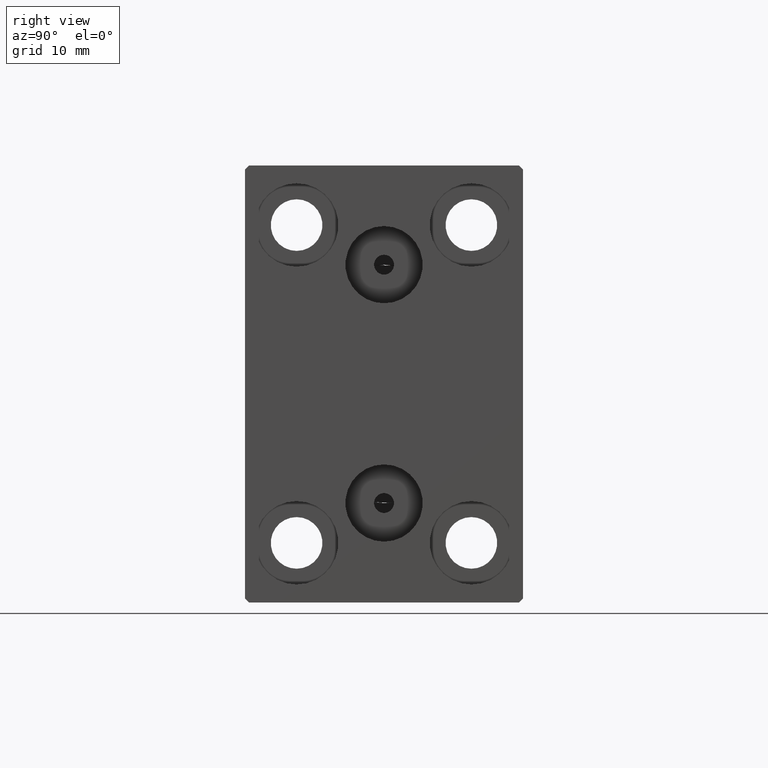
[diagram: clean part render]
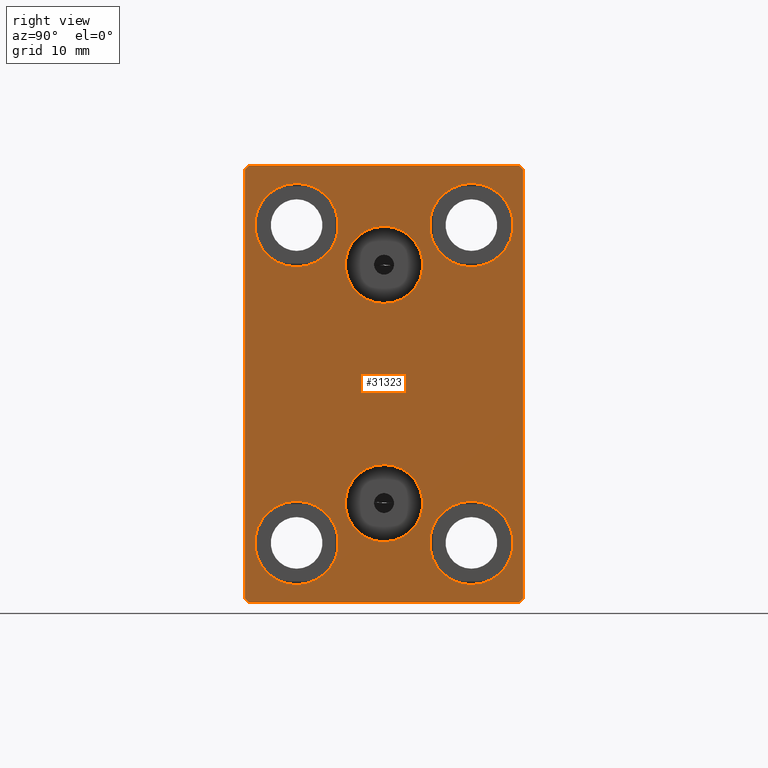
[diagram: same view with one face highlighted and labeled with its STEP entity id]
A machine part, right view. The second image highlights one B-rep face of the part: STEP entity #31323.
In plain terms, the highlighted planar face has unit normal (1, 0, 0).
Its self-contained STEP definition (entity closure, byte-faithful):
#24 = DIRECTION ( 'NONE',  ( -1.000000000000000000, -0.000000000000000000, -0.000000000000000000 ) ) ;
#706 = ORIENTED_EDGE ( 'NONE', *, *, #36427, .F. ) ;
#783 = VERTEX_POINT ( 'NONE', #35696 ) ;
#798 = ORIENTED_EDGE ( 'NONE', *, *, #19202, .T. ) ;
#1174 = VECTOR ( 'NONE', #10110, 1000.000000000000114 ) ;
#1561 = ORIENTED_EDGE ( 'NONE', *, *, #9342, .F. ) ;
#1874 = CARTESIAN_POINT ( 'NONE',  ( 56.00000000000000000, -16.99999999999999289, -27.50000000000000355 ) ) ;
#1967 = CARTESIAN_POINT ( 'NONE',  ( 56.00000000000000000, -11.00000000000000355, -25.25000000000000000 ) ) ;
#2121 = ORIENTED_EDGE ( 'NONE', *, *, #24792, .F. ) ;
#2409 = DIRECTION ( 'NONE',  ( -1.000000000000000000, -0.000000000000000000, -0.000000000000000000 ) ) ;
#2417 = CARTESIAN_POINT ( 'NONE',  ( 56.00000000000000000, -17.50000000000000000, 27.49999999999999645 ) ) ;
#2568 = EDGE_CURVE ( 'NONE', #41275, #17349, #3261, .T. ) ;
#2632 = EDGE_CURVE ( 'NONE', #6787, #36445, #24089, .T. ) ;
#2655 = ORIENTED_EDGE ( 'NONE', *, *, #33286, .T. ) ;
#2732 = DIRECTION ( 'NONE',  ( -1.000000000000000000, -0.000000000000000000, -0.000000000000000000 ) ) ;
#2847 = DIRECTION ( 'NONE',  ( 0.000000000000000000, 0.000000000000000000, 1.000000000000000000 ) ) ;
#3261 = CIRCLE ( 'NONE', #20951, 5.250000000000000888 ) ;
#3428 = EDGE_LOOP ( 'NONE', ( #39276, #34854 ) ) ;
#3684 = CARTESIAN_POINT ( 'NONE',  ( 56.00000000000000000, 11.00000000000000355, 25.25000000000000000 ) ) ;
#3824 = EDGE_CURVE ( 'NONE', #783, #17011, #43838, .T. ) ;
#3864 = VERTEX_POINT ( 'NONE', #35155 ) ;
#3912 = CIRCLE ( 'NONE', #22977, 5.250000000000000888 ) ;
#5209 = ORIENTED_EDGE ( 'NONE', *, *, #25830, .T. ) ;
#5397 = DIRECTION ( 'NONE',  ( 0.000000000000000000, 1.000000000000000000, 0.000000000000000000 ) ) ;
#5482 = CARTESIAN_POINT ( 'NONE',  ( 56.00000000000000000, -1.836970198721029589E-15, 15.00000000000000000 ) ) ;
#5733 = DIRECTION ( 'NONE',  ( -1.000000000000000000, -0.000000000000000000, -0.000000000000000000 ) ) ;
#6183 = CARTESIAN_POINT ( 'NONE',  ( 56.00000000000000000, -11.00000000000000355, 20.00000000000000000 ) ) ;
#6758 = LINE ( 'NONE', #27597, #19928 ) ;
#6779 = LINE ( 'NONE', #7435, #42996 ) ;
#6787 = VERTEX_POINT ( 'NONE', #28978 ) ;
#6819 = CIRCLE ( 'NONE', #36599, 4.859999999999999432 ) ;
#6904 = FACE_BOUND ( 'NONE', #3428, .T. ) ;
#7032 = CARTESIAN_POINT ( 'NONE',  ( 56.00000000000000000, 22.25000000000000711, -22.25000000000000711 ) ) ;
#7082 = CIRCLE ( 'NONE', #18422, 5.250000000000000888 ) ;
#7331 = PLANE ( 'NONE',  #18029 ) ;
#7435 = CARTESIAN_POINT ( 'NONE',  ( 56.00000000000000000, -22.24999999999999645, 22.24999999999999645 ) ) ;
#7559 = FACE_BOUND ( 'NONE', #19016, .T. ) ;
#7793 = VERTEX_POINT ( 'NONE', #10742 ) ;
#7855 = CARTESIAN_POINT ( 'NONE',  ( 56.00000000000000000, -11.00000000000000355, -20.00000000000000000 ) ) ;
#7867 = ORIENTED_EDGE ( 'NONE', *, *, #15006, .T. ) ;
#8540 = EDGE_CURVE ( 'NONE', #3864, #40082, #41432, .T. ) ;
#8728 = LINE ( 'NONE', #22231, #39107 ) ;
#8841 = DIRECTION ( 'NONE',  ( -1.000000000000000000, -0.000000000000000000, -0.000000000000000000 ) ) ;
#8892 = AXIS2_PLACEMENT_3D ( 'NONE', #33132, #2732, #12942 ) ;
#9166 = CARTESIAN_POINT ( 'NONE',  ( 56.00000000000000000, -22.25000000000000355, -22.25000000000000355 ) ) ;
#9255 = DIRECTION ( 'NONE',  ( 1.000000000000000000, 0.000000000000000000, 0.000000000000000000 ) ) ;
#9270 = CIRCLE ( 'NONE', #14256, 5.250000000000000888 ) ;
#9279 = DIRECTION ( 'NONE',  ( 0.000000000000000000, 0.000000000000000000, 1.000000000000000000 ) ) ;
#9342 = EDGE_CURVE ( 'NONE', #26062, #27767, #39684, .T. ) ;
#9583 = AXIS2_PLACEMENT_3D ( 'NONE', #6183, #2409, #2847 ) ;
#10082 = EDGE_CURVE ( 'NONE', #33589, #10258, #20554, .T. ) ;
#10110 = DIRECTION ( 'NONE',  ( -0.000000000000000000, -0.7071067811865474617, 0.7071067811865474617 ) ) ;
#10258 = VERTEX_POINT ( 'NONE', #1967 ) ;
#10456 = CARTESIAN_POINT ( 'NONE',  ( 56.00000000000000000, 0.000000000000000000, 0.000000000000000000 ) ) ;
#10742 = CARTESIAN_POINT ( 'NONE',  ( 56.00000000000000000, -1.241791854335416311E-15, 19.85999999999999943 ) ) ;
#11024 = DIRECTION ( 'NONE',  ( -0.000000000000000000, 0.7071067811865474617, -0.7071067811865474617 ) ) ;
#11484 = CARTESIAN_POINT ( 'NONE',  ( 56.00000000000000000, -11.00000000000000355, 14.75000000000000000 ) ) ;
#11751 = DIRECTION ( 'NONE',  ( 0.000000000000000000, 0.000000000000000000, 1.000000000000000000 ) ) ;
#11969 = DIRECTION ( 'NONE',  ( -1.000000000000000000, -0.000000000000000000, -0.000000000000000000 ) ) ;
#12295 = CARTESIAN_POINT ( 'NONE',  ( 56.00000000000000000, -16.99999999999999289, 27.49999999999999645 ) ) ;
#12321 = ORIENTED_EDGE ( 'NONE', *, *, #17590, .T. ) ;
#12429 = VERTEX_POINT ( 'NONE', #16977 ) ;
#12524 = CARTESIAN_POINT ( 'NONE',  ( 56.00000000000000000, 11.00000000000000355, 20.00000000000000000 ) ) ;
#12942 = DIRECTION ( 'NONE',  ( 0.000000000000000000, 0.000000000000000000, 1.000000000000000000 ) ) ;
#13510 = CARTESIAN_POINT ( 'NONE',  ( 56.00000000000000000, 16.99999999999999289, 27.50000000000000355 ) ) ;
#13572 = DIRECTION ( 'NONE',  ( 0.000000000000000000, 0.000000000000000000, 1.000000000000000000 ) ) ;
#14256 = AXIS2_PLACEMENT_3D ( 'NONE', #12524, #39814, #33152 ) ;
#14687 = ORIENTED_EDGE ( 'NONE', *, *, #2568, .T. ) ;
#14781 = VERTEX_POINT ( 'NONE', #30962 ) ;
#15006 = EDGE_CURVE ( 'NONE', #10258, #33589, #7082, .T. ) ;
#15456 = CARTESIAN_POINT ( 'NONE',  ( 56.00000000000000000, -11.00000000000000355, -14.75000000000000000 ) ) ;
#16547 = ORIENTED_EDGE ( 'NONE', *, *, #39680, .F. ) ;
#16898 = CARTESIAN_POINT ( 'NONE',  ( 56.00000000000000000, 11.00000000000000355, 14.75000000000000000 ) ) ;
#16977 = CARTESIAN_POINT ( 'NONE',  ( 56.00000000000000000, -11.00000000000000355, 25.25000000000000000 ) ) ;
#17011 = VERTEX_POINT ( 'NONE', #13510 ) ;
#17318 = FACE_BOUND ( 'NONE', #32410, .T. ) ;
#17349 = VERTEX_POINT ( 'NONE', #3684 ) ;
#17590 = EDGE_CURVE ( 'NONE', #17349, #41275, #9270, .T. ) ;
#17756 = FACE_BOUND ( 'NONE', #29628, .T. ) ;
#17962 = CARTESIAN_POINT ( 'NONE',  ( 56.00000000000000000, -11.00000000000000355, -20.00000000000000000 ) ) ;
#18029 = AXIS2_PLACEMENT_3D ( 'NONE', #10456, #23957, #31280 ) ;
#18228 = AXIS2_PLACEMENT_3D ( 'NONE', #5482, #25871, #39864 ) ;
#18273 = VERTEX_POINT ( 'NONE', #27149 ) ;
#18358 = CARTESIAN_POINT ( 'NONE',  ( 56.00000000000000000, -17.50000000000000000, 26.99999999999998934 ) ) ;
#18422 = AXIS2_PLACEMENT_3D ( 'NONE', #17962, #11969, #11751 ) ;
#18666 = AXIS2_PLACEMENT_3D ( 'NONE', #23296, #19322, #32855 ) ;
#18817 = CARTESIAN_POINT ( 'NONE',  ( 56.00000000000000000, -1.734723475976807094E-15, -15.00000000000000000 ) ) ;
#18986 = ORIENTED_EDGE ( 'NONE', *, *, #39885, .T. ) ;
#19016 = EDGE_LOOP ( 'NONE', ( #2655, #5209 ) ) ;
#19039 = EDGE_CURVE ( 'NONE', #17011, #25301, #6758, .T. ) ;
#19202 = EDGE_CURVE ( 'NONE', #40082, #6787, #8728, .T. ) ;
#19322 = DIRECTION ( 'NONE',  ( 1.000000000000000000, 0.000000000000000000, -0.000000000000000000 ) ) ;
#19663 = DIRECTION ( 'NONE',  ( 0.000000000000000000, 0.000000000000000000, -1.000000000000000000 ) ) ;
#19804 = VECTOR ( 'NONE', #11024, 1000.000000000000114 ) ;
#19928 = VECTOR ( 'NONE', #30918, 1000.000000000000000 ) ;
#20367 = EDGE_LOOP ( 'NONE', ( #1561, #2121 ) ) ;
#20539 = DIRECTION ( 'NONE',  ( -0.000000000000000000, 0.7071067811865474617, 0.7071067811865474617 ) ) ;
#20554 = CIRCLE ( 'NONE', #37567, 5.250000000000000888 ) ;
#20620 = FACE_BOUND ( 'NONE', #24850, .T. ) ;
#20718 = DIRECTION ( 'NONE',  ( 0.000000000000000000, -0.7071067811865474617, -0.7071067811865474617 ) ) ;
#20951 = AXIS2_PLACEMENT_3D ( 'NONE', #42786, #8841, #26115 ) ;
#21069 = CARTESIAN_POINT ( 'NONE',  ( 56.00000000000000000, 11.00000000000000355, -14.75000000000000000 ) ) ;
#21366 = DIRECTION ( 'NONE',  ( -1.000000000000000000, -0.000000000000000000, -0.000000000000000000 ) ) ;
#21521 = ORIENTED_EDGE ( 'NONE', *, *, #19039, .T. ) ;
#22231 = CARTESIAN_POINT ( 'NONE',  ( 56.00000000000000000, -17.50000000000000000, -27.50000000000000355 ) ) ;
#22317 = CIRCLE ( 'NONE', #8892, 5.250000000000000888 ) ;
#22591 = LINE ( 'NONE', #2417, #23169 ) ;
#22802 = DIRECTION ( 'NONE',  ( 0.000000000000000000, 0.000000000000000000, -1.000000000000000000 ) ) ;
#22977 = AXIS2_PLACEMENT_3D ( 'NONE', #32570, #5733, #9279 ) ;
#23169 = VECTOR ( 'NONE', #22802, 1000.000000000000000 ) ;
#23250 = CARTESIAN_POINT ( 'NONE',  ( 56.00000000000000000, -1.734723475976807094E-15, -19.85999999999999943 ) ) ;
#23296 = CARTESIAN_POINT ( 'NONE',  ( 56.00000000000000000, -1.734723475976807094E-15, -15.00000000000000000 ) ) ;
#23957 = DIRECTION ( 'NONE',  ( 1.000000000000000000, 0.000000000000000000, 0.000000000000000000 ) ) ;
#24089 = LINE ( 'NONE', #7032, #31601 ) ;
#24509 = CARTESIAN_POINT ( 'NONE',  ( 56.00000000000000000, 17.50000000000000711, -27.50000000000000355 ) ) ;
#24792 = EDGE_CURVE ( 'NONE', #27767, #26062, #27877, .T. ) ;
#24850 = EDGE_LOOP ( 'NONE', ( #14687, #12321 ) ) ;
#25301 = VERTEX_POINT ( 'NONE', #12295 ) ;
#25830 = EDGE_CURVE ( 'NONE', #28616, #18273, #26511, .T. ) ;
#25871 = DIRECTION ( 'NONE',  ( 1.000000000000000000, 0.000000000000000000, 0.000000000000000000 ) ) ;
#26062 = VERTEX_POINT ( 'NONE', #23250 ) ;
#26115 = DIRECTION ( 'NONE',  ( 0.000000000000000000, 0.000000000000000000, 1.000000000000000000 ) ) ;
#26511 = CIRCLE ( 'NONE', #40694, 5.250000000000000888 ) ;
#27149 = CARTESIAN_POINT ( 'NONE',  ( 56.00000000000000000, 11.00000000000000355, -25.25000000000000000 ) ) ;
#27597 = CARTESIAN_POINT ( 'NONE',  ( 56.00000000000000000, 17.50000000000000000, 27.50000000000000355 ) ) ;
#27734 = FACE_BOUND ( 'NONE', #20367, .T. ) ;
#27767 = VERTEX_POINT ( 'NONE', #35276 ) ;
#27860 = ORIENTED_EDGE ( 'NONE', *, *, #3824, .T. ) ;
#27877 = CIRCLE ( 'NONE', #18666, 4.859999999999999432 ) ;
#27949 = FACE_OUTER_BOUND ( 'NONE', #33169, .T. ) ;
#28128 = CIRCLE ( 'NONE', #18228, 4.859999999999999432 ) ;
#28274 = DIRECTION ( 'NONE',  ( 0.000000000000000000, -1.261617073437677752E-16, 1.000000000000000000 ) ) ;
#28616 = VERTEX_POINT ( 'NONE', #21069 ) ;
#28978 = CARTESIAN_POINT ( 'NONE',  ( 56.00000000000000000, 17.00000000000000711, -27.50000000000000355 ) ) ;
#29535 = VECTOR ( 'NONE', #28274, 1000.000000000000000 ) ;
#29628 = EDGE_LOOP ( 'NONE', ( #16547, #706 ) ) ;
#29858 = CARTESIAN_POINT ( 'NONE',  ( 56.00000000000000000, 17.50000000000000711, -27.00000000000000355 ) ) ;
#30156 = EDGE_CURVE ( 'NONE', #12429, #37915, #22317, .T. ) ;
#30402 = CARTESIAN_POINT ( 'NONE',  ( 56.00000000000000000, 11.00000000000000355, -20.00000000000000000 ) ) ;
#30918 = DIRECTION ( 'NONE',  ( 0.000000000000000000, -1.000000000000000000, -1.982541115402065110E-16 ) ) ;
#30962 = CARTESIAN_POINT ( 'NONE',  ( 56.00000000000000000, -1.836970198721029589E-15, 10.14000000000000057 ) ) ;
#31280 = DIRECTION ( 'NONE',  ( 0.000000000000000000, 0.000000000000000000, -1.000000000000000000 ) ) ;
#31313 = ORIENTED_EDGE ( 'NONE', *, *, #10082, .T. ) ;
#31323 = ADVANCED_FACE ( 'NONE', ( #17756, #27734, #7559, #6904, #20620, #17318, #27949 ), #7331, .T. ) ;
#31601 = VECTOR ( 'NONE', #20539, 1000.000000000000114 ) ;
#32121 = DIRECTION ( 'NONE',  ( 0.000000000000000000, 0.000000000000000000, 1.000000000000000000 ) ) ;
#32410 = EDGE_LOOP ( 'NONE', ( #7867, #31313 ) ) ;
#32570 = CARTESIAN_POINT ( 'NONE',  ( 56.00000000000000000, 11.00000000000000355, -20.00000000000000000 ) ) ;
#32855 = DIRECTION ( 'NONE',  ( 0.000000000000000000, 0.000000000000000000, 1.000000000000000000 ) ) ;
#33132 = CARTESIAN_POINT ( 'NONE',  ( 56.00000000000000000, -11.00000000000000355, 20.00000000000000000 ) ) ;
#33152 = DIRECTION ( 'NONE',  ( 0.000000000000000000, 0.000000000000000000, 1.000000000000000000 ) ) ;
#33169 = EDGE_LOOP ( 'NONE', ( #21521, #43049, #43844, #42989, #798, #35370, #18986, #27860 ) ) ;
#33279 = AXIS2_PLACEMENT_3D ( 'NONE', #18817, #38365, #32121 ) ;
#33286 = EDGE_CURVE ( 'NONE', #18273, #28616, #3912, .T. ) ;
#33589 = VERTEX_POINT ( 'NONE', #15456 ) ;
#34486 = EDGE_CURVE ( 'NONE', #37915, #12429, #35805, .T. ) ;
#34854 = ORIENTED_EDGE ( 'NONE', *, *, #30156, .T. ) ;
#35155 = CARTESIAN_POINT ( 'NONE',  ( 56.00000000000000000, -17.50000000000000000, -26.99999999999999645 ) ) ;
#35276 = CARTESIAN_POINT ( 'NONE',  ( 56.00000000000000000, -1.139545131591193817E-15, -10.14000000000000057 ) ) ;
#35370 = ORIENTED_EDGE ( 'NONE', *, *, #2632, .T. ) ;
#35510 = VERTEX_POINT ( 'NONE', #18358 ) ;
#35696 = CARTESIAN_POINT ( 'NONE',  ( 56.00000000000000000, 17.50000000000000000, 26.99999999999999645 ) ) ;
#35805 = CIRCLE ( 'NONE', #9583, 5.250000000000000888 ) ;
#36427 = EDGE_CURVE ( 'NONE', #7793, #14781, #6819, .T. ) ;
#36445 = VERTEX_POINT ( 'NONE', #29858 ) ;
#36599 = AXIS2_PLACEMENT_3D ( 'NONE', #43417, #9255, #19663 ) ;
#37567 = AXIS2_PLACEMENT_3D ( 'NONE', #7855, #21366, #38911 ) ;
#37915 = VERTEX_POINT ( 'NONE', #11484 ) ;
#38047 = EDGE_CURVE ( 'NONE', #25301, #35510, #6779, .T. ) ;
#38283 = LINE ( 'NONE', #24509, #29535 ) ;
#38365 = DIRECTION ( 'NONE',  ( 1.000000000000000000, 0.000000000000000000, -0.000000000000000000 ) ) ;
#38911 = DIRECTION ( 'NONE',  ( 0.000000000000000000, 0.000000000000000000, 1.000000000000000000 ) ) ;
#39107 = VECTOR ( 'NONE', #5397, 1000.000000000000000 ) ;
#39276 = ORIENTED_EDGE ( 'NONE', *, *, #34486, .T. ) ;
#39507 = EDGE_CURVE ( 'NONE', #35510, #3864, #22591, .T. ) ;
#39680 = EDGE_CURVE ( 'NONE', #14781, #7793, #28128, .T. ) ;
#39684 = CIRCLE ( 'NONE', #33279, 4.859999999999999432 ) ;
#39814 = DIRECTION ( 'NONE',  ( -1.000000000000000000, -0.000000000000000000, -0.000000000000000000 ) ) ;
#39864 = DIRECTION ( 'NONE',  ( 0.000000000000000000, 0.000000000000000000, -1.000000000000000000 ) ) ;
#39885 = EDGE_CURVE ( 'NONE', #36445, #783, #38283, .T. ) ;
#40082 = VERTEX_POINT ( 'NONE', #1874 ) ;
#40511 = CARTESIAN_POINT ( 'NONE',  ( 56.00000000000000000, 22.25000000000000355, 22.25000000000000355 ) ) ;
#40694 = AXIS2_PLACEMENT_3D ( 'NONE', #30402, #24, #13572 ) ;
#41275 = VERTEX_POINT ( 'NONE', #16898 ) ;
#41432 = LINE ( 'NONE', #9166, #19804 ) ;
#42786 = CARTESIAN_POINT ( 'NONE',  ( 56.00000000000000000, 11.00000000000000355, 20.00000000000000000 ) ) ;
#42989 = ORIENTED_EDGE ( 'NONE', *, *, #8540, .T. ) ;
#42996 = VECTOR ( 'NONE', #20718, 1000.000000000000114 ) ;
#43049 = ORIENTED_EDGE ( 'NONE', *, *, #38047, .T. ) ;
#43417 = CARTESIAN_POINT ( 'NONE',  ( 56.00000000000000000, -1.836970198721029589E-15, 15.00000000000000000 ) ) ;
#43838 = LINE ( 'NONE', #40511, #1174 ) ;
#43844 = ORIENTED_EDGE ( 'NONE', *, *, #39507, .T. ) ;